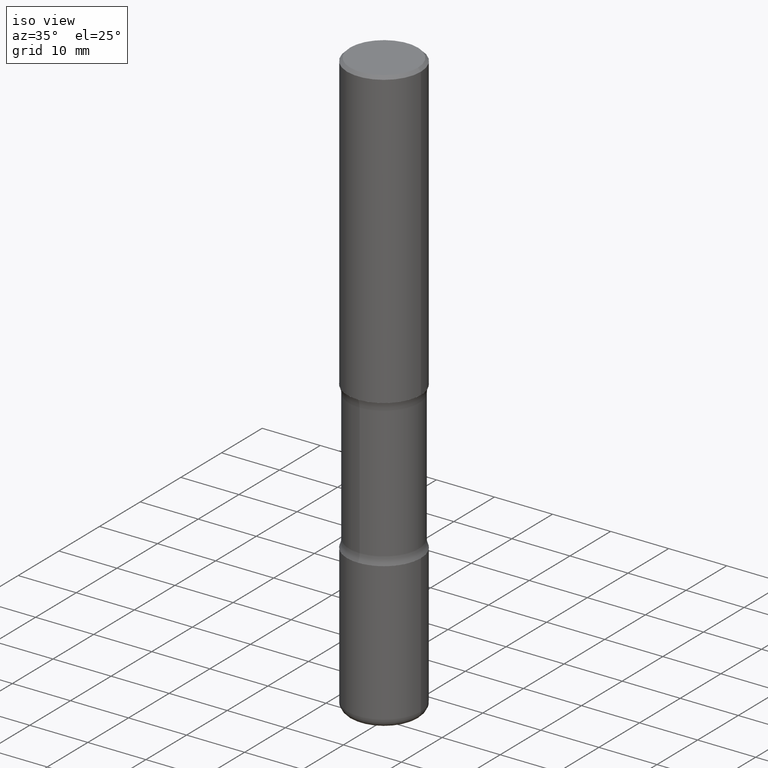
[diagram: clean part render]
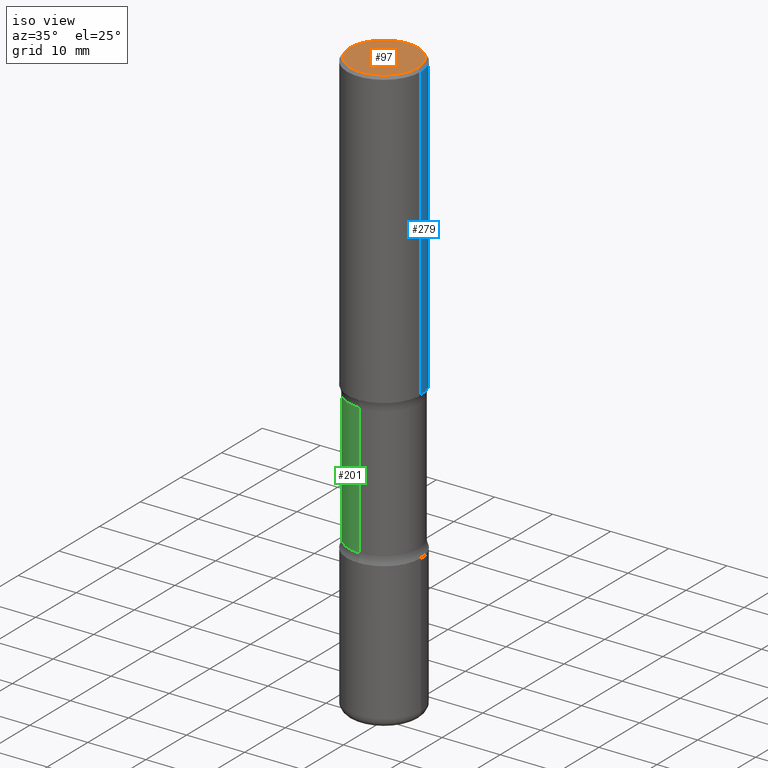
[diagram: same view with three faces highlighted in distinct colors, each labeled with its STEP entity id]
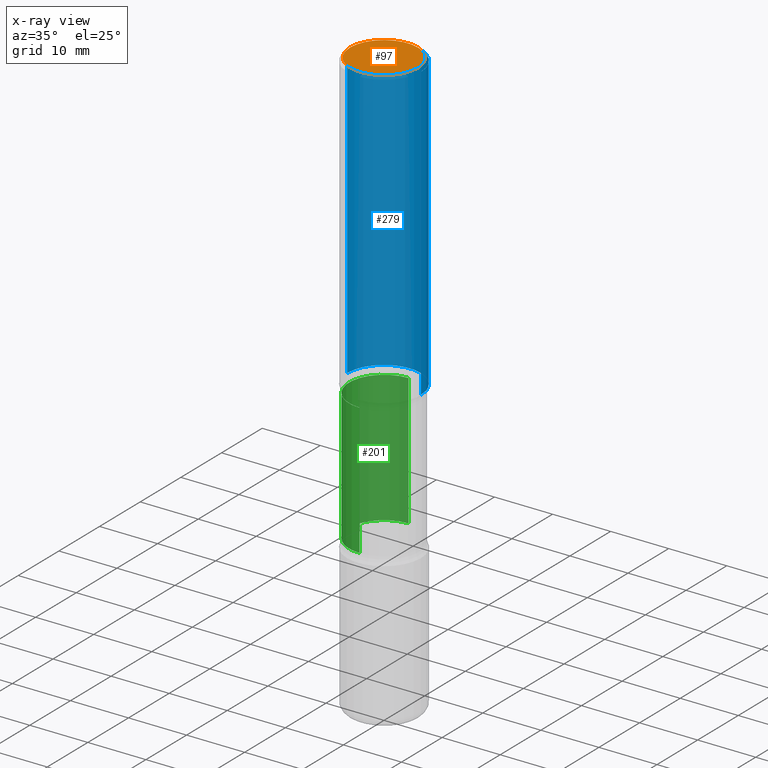
[diagram: x-ray of the same camera — body ghosted, the three highlighted faces saturated]
A machine part, iso view with three faces highlighted in distinct colors.
The next image is the same camera in x-ray (body ghosted, the three faces saturated) — at least one of them is partly hidden behind the body in this view.
Their STEP definitions:

[orange] entity #97 — the highlighted planar face has unit normal (0, -0, -1).
#27 = VERTEX_POINT ( 'NONE', #328 ) ;
#31 = DIRECTION ( 'NONE',  ( -2.445468806185136597E-29, 3.491481338843145583E-15, 1.000000000000000000 ) ) ;
#53 = FACE_OUTER_BOUND ( 'NONE', #351, .T. ) ;
#79 = DIRECTION ( 'NONE',  ( -2.445468806185136597E-29, 3.491481338843145583E-15, 1.000000000000000000 ) ) ;
#97 = ADVANCED_FACE ( 'NONE', ( #53 ), #412, .F. ) ;
#109 = DIRECTION ( 'NONE',  ( 2.438088387897960049E-29, -3.491481338843145188E-15, -1.000000000000000000 ) ) ;
#111 = AXIS2_PLACEMENT_3D ( 'NONE', #147, #109, #172 ) ;
#147 = CARTESIAN_POINT ( 'NONE',  ( 1.606081415867840476E-15, 0.2299999999999998990, -8.030407079339231961E-16 ) ) ;
#166 = CARTESIAN_POINT ( 'NONE',  ( 0.000000000000000000, 0.000000000000000000, 0.000000000000000000 ) ) ;
#172 = DIRECTION ( 'NONE',  ( -1.000000000000000000, 6.982962677686265922E-15, -4.876176775795935793E-29 ) ) ;
#173 = ORIENTED_EDGE ( 'NONE', *, *, #441, .T. ) ;
#244 = CIRCLE ( 'NONE', #471, 0.2299999999999998990 ) ;
#245 = CIRCLE ( 'NONE', #538, 0.2299999999999998990 ) ;
#263 = VERTEX_POINT ( 'NONE', #526 ) ;
#314 = EDGE_CURVE ( 'NONE', #27, #263, #244, .T. ) ;
#328 = CARTESIAN_POINT ( 'NONE',  ( -0.2299999999999998990, 1.640996229256271928E-15, -1.135408596578605420E-29 ) ) ;
#341 = DIRECTION ( 'NONE',  ( 1.000000000000000000, -6.982962677686267499E-15, 4.876176775795936353E-29 ) ) ;
#351 = EDGE_LOOP ( 'NONE', ( #432, #173 ) ) ;
#412 = PLANE ( 'NONE',  #111 ) ;
#429 = CARTESIAN_POINT ( 'NONE',  ( 0.000000000000000000, 0.000000000000000000, 0.000000000000000000 ) ) ;
#432 = ORIENTED_EDGE ( 'NONE', *, *, #314, .T. ) ;
#441 = EDGE_CURVE ( 'NONE', #263, #27, #245, .T. ) ;
#471 = AXIS2_PLACEMENT_3D ( 'NONE', #166, #79, #523 ) ;
#523 = DIRECTION ( 'NONE',  ( 1.000000000000000000, -6.982962677686267499E-15, 4.876176775795936353E-29 ) ) ;
#526 = CARTESIAN_POINT ( 'NONE',  ( 0.2299999999999998990, -1.681434332853598617E-15, 1.149527484987432660E-29 ) ) ;
#538 = AXIS2_PLACEMENT_3D ( 'NONE', #429, #31, #341 ) ;

[blue] entity #279 — the highlighted cylindrical surface (partial cylindrical patch) has radius 6.35 mm, axis along (-0, 0, 1).
#24 = ORIENTED_EDGE ( 'NONE', *, *, #485, .F. ) ;
#42 = CARTESIAN_POINT ( 'NONE',  ( 0.2499999999999999167, -1.784954126219745400E-15, -0.02000000000000006981 ) ) ;
#61 = ORIENTED_EDGE ( 'NONE', *, *, #535, .T. ) ;
#64 = DIRECTION ( 'NONE',  ( -2.445468806185136877E-29, 3.491481338843145188E-15, 1.000000000000000000 ) ) ;
#70 = DIRECTION ( 'NONE',  ( 1.000000000000000000, -6.982962677686267499E-15, 0.000000000000000000 ) ) ;
#92 = CIRCLE ( 'NONE', #131, 0.2499999999999999167 ) ;
#93 = DIRECTION ( 'NONE',  ( -2.445468806185136597E-29, 3.491481338843145583E-15, 1.000000000000000000 ) ) ;
#112 = CYLINDRICAL_SURFACE ( 'NONE', #340, 0.2500000000000000555 ) ;
#124 = DIRECTION ( 'NONE',  ( -2.445468806185136597E-29, 3.491481338843145583E-15, 1.000000000000000000 ) ) ;
#131 = AXIS2_PLACEMENT_3D ( 'NONE', #497, #390, #70 ) ;
#155 = VECTOR ( 'NONE', #156, 39.37007874015748143 ) ;
#156 = DIRECTION ( 'NONE',  ( -2.445468806185136877E-29, 3.491481338843145188E-15, 1.000000000000000000 ) ) ;
#158 = VERTEX_POINT ( 'NONE', #220 ) ;
#162 = FACE_OUTER_BOUND ( 'NONE', #195, .T. ) ;
#190 = ORIENTED_EDGE ( 'NONE', *, *, #491, .T. ) ;
#195 = EDGE_LOOP ( 'NONE', ( #61, #190, #325, #24 ) ) ;
#197 = VERTEX_POINT ( 'NONE', #42 ) ;
#203 = CARTESIAN_POINT ( 'NONE',  ( -0.2500000000000000555, 1.776356839400250859E-15, -1.229733772563726866E-29 ) ) ;
#211 = CARTESIAN_POINT ( 'NONE',  ( 0.000000000000000000, 0.000000000000000000, 0.000000000000000000 ) ) ;
#213 = DIRECTION ( 'NONE',  ( 1.000000000000000000, -6.982962677686265922E-15, 0.000000000000000000 ) ) ;
#220 = CARTESIAN_POINT ( 'NONE',  ( -0.2500000000000001665, -1.750039312831323809E-15, -2.000000000000000000 ) ) ;
#237 = CIRCLE ( 'NONE', #322, 0.2500000000000001665 ) ;
#247 = LINE ( 'NONE', #424, #449 ) ;
#279 = ADVANCED_FACE ( 'NONE', ( #162 ), #112, .T. ) ;
#303 = CARTESIAN_POINT ( 'NONE',  ( -0.2499999999999999167, 1.675911042644703182E-15, -0.02000000000000006981 ) ) ;
#322 = AXIS2_PLACEMENT_3D ( 'NONE', #402, #93, #213 ) ;
#325 = ORIENTED_EDGE ( 'NONE', *, *, #428, .F. ) ;
#338 = LINE ( 'NONE', #203, #155 ) ;
#340 = AXIS2_PLACEMENT_3D ( 'NONE', #211, #124, #387 ) ;
#387 = DIRECTION ( 'NONE',  ( 1.000000000000000000, -6.982962677686267499E-15, 4.876176775795935793E-29 ) ) ;
#390 = DIRECTION ( 'NONE',  ( -2.445468806185136597E-29, 3.491481338843145583E-15, 1.000000000000000000 ) ) ;
#402 = CARTESIAN_POINT ( 'NONE',  ( 4.890937612370273194E-29, -6.982962677686291165E-15, -2.000000000000000000 ) ) ;
#424 = CARTESIAN_POINT ( 'NONE',  ( 0.2500000000000000555, -1.745740669421567269E-15, 1.219044193948984228E-29 ) ) ;
#426 = VERTEX_POINT ( 'NONE', #494 ) ;
#428 = EDGE_CURVE ( 'NONE', #197, #483, #92, .T. ) ;
#449 = VECTOR ( 'NONE', #64, 39.37007874015748143 ) ;
#483 = VERTEX_POINT ( 'NONE', #303 ) ;
#485 = EDGE_CURVE ( 'NONE', #426, #197, #247, .T. ) ;
#491 = EDGE_CURVE ( 'NONE', #158, #483, #338, .T. ) ;
#494 = CARTESIAN_POINT ( 'NONE',  ( 0.2500000000000001665, -8.728703347107858632E-15, -2.000000000000000000 ) ) ;
#497 = CARTESIAN_POINT ( 'NONE',  ( 4.890937612370289799E-31, -6.982962677686315028E-17, -0.02000000000000006981 ) ) ;
#535 = EDGE_CURVE ( 'NONE', #426, #158, #237, .T. ) ;

[green] entity #201 — the highlighted cylindrical surface (partial cylindrical patch) has radius 6.0325 mm, axis along (0, -0, -1).
#3 = AXIS2_PLACEMENT_3D ( 'NONE', #254, #126, #242 ) ;
#63 = CARTESIAN_POINT ( 'NONE',  ( 1.658453635950587543E-15, 0.2374999999999862776, -4.000000000000000888 ) ) ;
#65 = VERTEX_POINT ( 'NONE', #536 ) ;
#73 = DIRECTION ( 'NONE',  ( 2.530378452311521502E-29, -3.369885892833230592E-15, -1.000000000000000000 ) ) ;
#82 = EDGE_CURVE ( 'NONE', #186, #527, #467, .T. ) ;
#96 = AXIS2_PLACEMENT_3D ( 'NONE', #229, #500, #464 ) ;
#98 = DIRECTION ( 'NONE',  ( 2.530378452311521502E-29, -3.369885892833230592E-15, -1.000000000000000000 ) ) ;
#99 = LINE ( 'NONE', #281, #372 ) ;
#118 = DIRECTION ( 'NONE',  ( 2.530378452311521502E-29, -3.369885892833230986E-15, -1.000000000000000000 ) ) ;
#122 = ORIENTED_EDGE ( 'NONE', *, *, #308, .F. ) ;
#126 = DIRECTION ( 'NONE',  ( 2.530378452311521502E-29, -3.369885892833230986E-15, -1.000000000000000000 ) ) ;
#161 = CARTESIAN_POINT ( 'NONE',  ( 1.658453635950560525E-15, 0.2374999999999897748, -2.945513763205741764 ) ) ;
#163 = CARTESIAN_POINT ( 'NONE',  ( 1.658453635950538436E-15, 0.2374999999999928557, -2.054486236794259568 ) ) ;
#186 = VERTEX_POINT ( 'NONE', #163 ) ;
#201 = ADVANCED_FACE ( 'NONE', ( #357 ), #484, .T. ) ;
#217 = VERTEX_POINT ( 'NONE', #438 ) ;
#229 = CARTESIAN_POINT ( 'NONE',  ( 9.866784870866931853E-29, -1.384432990936266734E-14, -4.000000000000000000 ) ) ;
#242 = DIRECTION ( 'NONE',  ( 6.982962677686265133E-15, 1.000000000000000000, -3.450755360418014766E-15 ) ) ;
#253 = DIRECTION ( 'NONE',  ( 6.982962677686265133E-15, 1.000000000000000000, -2.300503573612010239E-15 ) ) ;
#254 = CARTESIAN_POINT ( 'NONE',  ( 4.943898765775623630E-29, -7.288170524422749615E-15, -2.054486236794258680 ) ) ;
#281 = CARTESIAN_POINT ( 'NONE',  ( -1.629368274470640415E-15, -0.2375000000000139222, -3.999999999999999556 ) ) ;
#308 = EDGE_CURVE ( 'NONE', #217, #527, #493, .T. ) ;
#357 = FACE_OUTER_BOUND ( 'NONE', #529, .T. ) ;
#372 = VECTOR ( 'NONE', #73, 39.37007874015748143 ) ;
#386 = ORIENTED_EDGE ( 'NONE', *, *, #82, .T. ) ;
#438 = CARTESIAN_POINT ( 'NONE',  ( -1.672246386956739071E-15, -0.2375000000000103417, -2.945513763205740876 ) ) ;
#456 = CIRCLE ( 'NONE', #3, 0.2375000000000001277 ) ;
#464 = DIRECTION ( 'NONE',  ( 6.982962677686265133E-15, 1.000000000000000000, -2.300503573612010239E-15 ) ) ;
#467 = LINE ( 'NONE', #63, #537 ) ;
#477 = EDGE_CURVE ( 'NONE', #65, #217, #99, .T. ) ;
#479 = AXIS2_PLACEMENT_3D ( 'NONE', #518, #118, #253 ) ;
#481 = EDGE_CURVE ( 'NONE', #65, #186, #456, .T. ) ;
#484 = CYLINDRICAL_SURFACE ( 'NONE', #96, 0.2375000000000000999 ) ;
#493 = CIRCLE ( 'NONE', #479, 0.2375000000000000722 ) ;
#500 = DIRECTION ( 'NONE',  ( 2.530378452311521502E-29, -3.369885892833230986E-15, -1.000000000000000000 ) ) ;
#518 = CARTESIAN_POINT ( 'NONE',  ( 7.198535619023675570E-29, -1.029083161580289368E-14, -2.945513763205741320 ) ) ;
#527 = VERTEX_POINT ( 'NONE', #161 ) ;
#529 = EDGE_LOOP ( 'NONE', ( #539, #551, #386, #122 ) ) ;
#536 = CARTESIAN_POINT ( 'NONE',  ( -1.672246386956763723E-15, -0.2375000000000074274, -2.054486236794258236 ) ) ;
#537 = VECTOR ( 'NONE', #98, 39.37007874015748143 ) ;
#539 = ORIENTED_EDGE ( 'NONE', *, *, #477, .F. ) ;
#551 = ORIENTED_EDGE ( 'NONE', *, *, #481, .T. ) ;